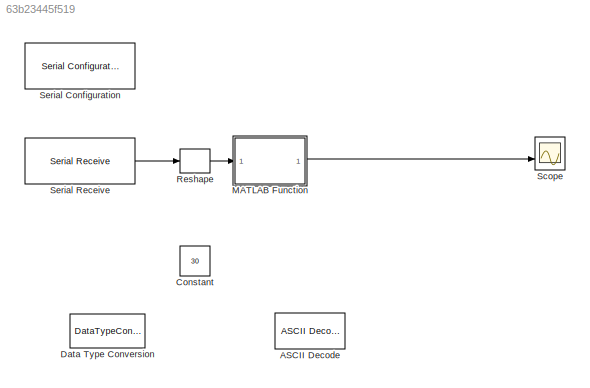
MODEL slx_63b23445f519
KIND model
CONFIG AbsTol = auto
CONFIG FixedStep = auto
CONFIG MaxStep = auto
CONFIG MinStep = auto
CONFIG RelTol = 1e-3
CONFIG SampleTimeConstraint = Unconstrained
CONFIG Solver = VariableStepAuto
CONFIG SolverMode = Auto
CONFIG SolverName = VariableStepAuto
CONFIG StartTime = 0.0
CONFIG StopTime = 10.0
BLOCK [Reference] ASCII Decode   REF=xpcseriallib/ASCII Decode 
  Commented = on
  Ports = [1, 1]
  SourceBlock = xpcseriallib/ASCII Decode
  SourceType = ASCII Decode
BLOCK [Constant] Constant
  Commented = on
  Value = 30
BLOCK [DataTypeConversion] Data Type Conversion
  Commented = on
  OutDataTypeStr = double
  RndMeth = Floor
  SaturateOnIntegerOverflow = off
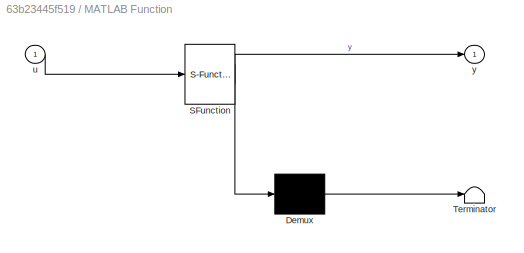
BLOCK [SubSystem] MATLAB Function
  ErrorFcn = Stateflow.Translate.translate
  PermitHierarchicalResolution = ExplicitOnly
  Ports = [1, 1]
  RequestExecContextInheritance = off
  SFBlockType = MATLAB Function
  TreatAsAtomicUnit = on
  Variant = off
BLOCK [Demux] MATLAB Function/ Demux 
  Outputs = 1
  Ports = [1, 1]
BLOCK [S-Function] MATLAB Function/ SFunction 
  EnableBusSupport = on
  FunctionName = sf_sfun
  PortCounts = [1 2]
  Ports = [1, 2]
  SFunctionDeploymentMode = off
  Tag = Stateflow S-Function SerialReceive 2
BLOCK [Terminator] MATLAB Function/ Terminator 
BLOCK [Inport] MATLAB Function/u
  IconDisplay = Port number
BLOCK [Outport] MATLAB Function/y
  IconDisplay = Port number
BLOCK [Reshape] Reshape
  OutputDimensionality = Customize
  OutputDimensions = [1]
  Ports = [1, 1]
BLOCK [Scope] Scope
  NumInputPorts = 2
  Ports = [2]
  ScopeSpecificationString = Simulink.scopes.TimeScopeBlockCfg('CurrentConfiguration', extmgr.ConfigurationSet(extmgr.Configuration('Core','General UI',true),extmgr.Configuration('Core','Source UI',true),extmgr.Configuration('Sources','WiredSimulink',true),extmgr.Configuration('Visuals','Time Domain',true,'SerializedDisplays',{struct('MinYLimReal','47.26997','MaxYLimReal','49.76997','YLabelReal','','MinYLimMag','47.26997','Ma...<+1433ch>
BLOCK [Reference] Serial Configuration  REF=instrumentlib/Serial Configuration
  Ports = []
  Priority = -200000
  SourceBlock = instrumentlib/Serial Configuration
  SourceType = Serial Configuration
BLOCK [Reference] Serial Receive  REF=instrumentlib/Serial Receive
  Ports = [0, 1]
  SourceBlock = instrumentlib/Serial Receive
  SourceType = Serial Receive
LINE MATLAB Function:1 -> Scope:2
LINE Reshape:1 -> MATLAB Function:1
LINE Serial Receive:1 -> Reshape:1
CHART MATLAB Function states=1 transitions=1
  STATE_LABEL 'eML_blk_kernel()'
  STATE_LABEL 'SCRIPT:\nfunction y = fcn(u)\n%#codegen\ng = eye(3);\n%y=1;\ny = unicode2native(u);'
